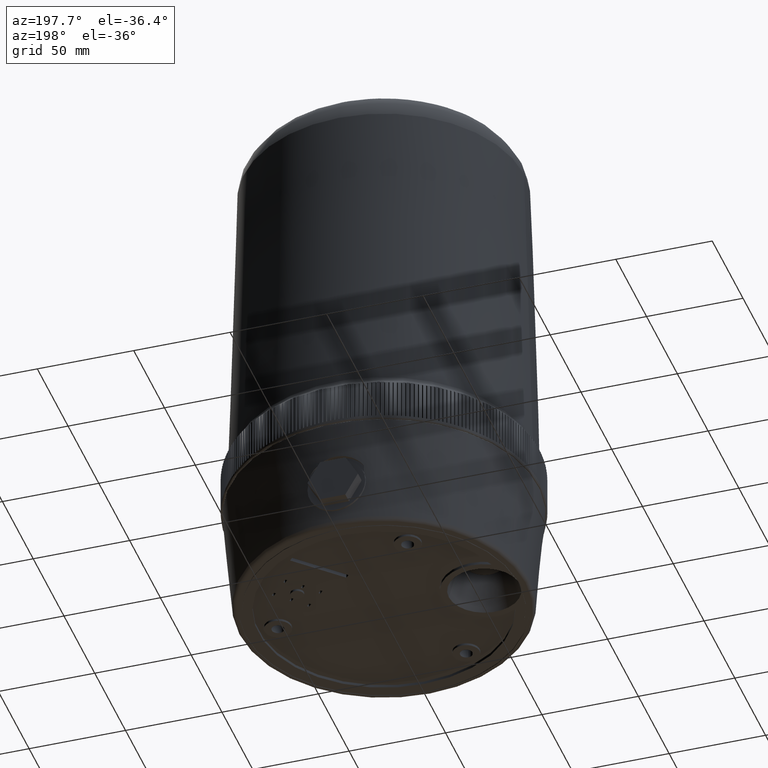
[diagram: clean part render]
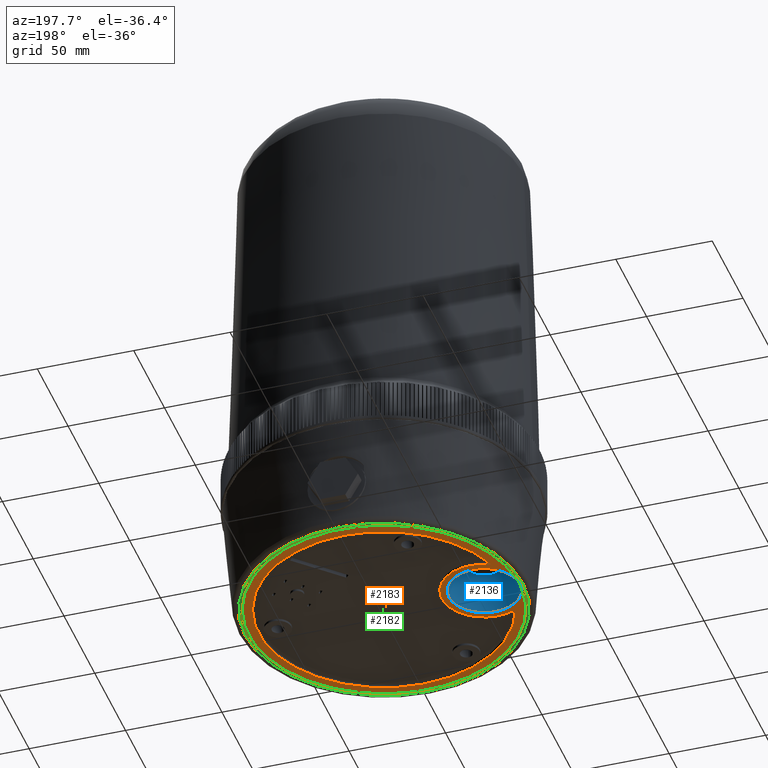
[diagram: same view with three faces highlighted in distinct colors, each labeled with its STEP entity id]
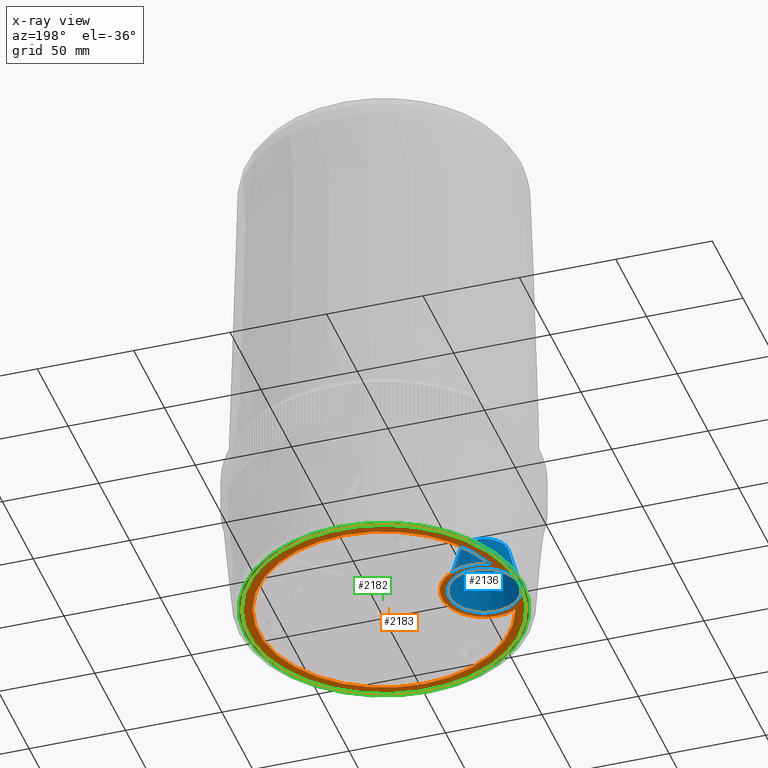
[diagram: x-ray of the same camera — body ghosted, the three highlighted faces saturated]
A machine part, auxiliary view with three faces highlighted in distinct colors.
The next image is the same camera in x-ray (body ghosted, the three faces saturated) — at least one of them is partly hidden behind the body in this view.
Their STEP definitions:

[orange] entity #2183 — the highlighted planar face has unit normal (0, 0, -1).
#1118=FACE_BOUND('',#5075,.T.);
#1119=FACE_BOUND('',#5076,.T.);
#2183=ADVANCED_FACE('',(#1118,#1119),#2979,.T.);
#2979=PLANE('',#20189);
#5075=EDGE_LOOP('',(#13274,#13275));
#5076=EDGE_LOOP('',(#13276,#13277));
#13274=ORIENTED_EDGE('',*,*,#17500,.T.);
#13275=ORIENTED_EDGE('',*,*,#17495,.T.);
#13276=ORIENTED_EDGE('',*,*,#17491,.F.);
#13277=ORIENTED_EDGE('',*,*,#17476,.T.);
#14944=VERTEX_POINT('',#31108);
#14945=VERTEX_POINT('',#31109);
#14957=VERTEX_POINT('',#31322);
#14958=VERTEX_POINT('',#31324);
#17476=EDGE_CURVE('',#14944,#14945,#18387,.T.);
#17491=EDGE_CURVE('',#14944,#14945,#18392,.T.);
#17495=EDGE_CURVE('',#14958,#14957,#18395,.T.);
#17500=EDGE_CURVE('',#14957,#14958,#18399,.T.);
#18387=CIRCLE('',#20123,65.);
#18392=CIRCLE('',#20131,22.);
#18395=CIRCLE('',#20135,18.3771907798607);
#18399=CIRCLE('',#20142,70.15);
#20123=AXIS2_PLACEMENT_3D('',#31107,#24870,#24871);
#20131=AXIS2_PLACEMENT_3D('',#31311,#24888,#24889);
#20135=AXIS2_PLACEMENT_3D('',#31323,#24896,#24897);
#20142=AXIS2_PLACEMENT_3D('',#31337,#24910,#24911);
#20189=AXIS2_PLACEMENT_3D('',#31526,#25088,#25089);
#24870=DIRECTION('',(0.,0.,1.));
#24871=DIRECTION('',(-1.,0.,0.));
#24888=DIRECTION('',(0.,0.,1.));
#24889=DIRECTION('',(0.,-1.,0.));
#24896=DIRECTION('',(0.,0.,1.));
#24897=DIRECTION('',(-1.,0.,0.));
#24910=DIRECTION('',(0.,0.,-1.));
#24911=DIRECTION('',(-1.,0.,0.));
#25088=DIRECTION('',(0.,0.,-1.));
#25089=DIRECTION('',(0.,-1.,0.));
#31107=CARTESIAN_POINT('',(7.37257477290143E-015,0.,-40.5));
#31108=CARTESIAN_POINT('',(-61.9711538461539,-19.6106116930688,-40.5));
#31109=CARTESIAN_POINT('',(-61.9711538461539,19.6106116930688,-40.5));
#31311=CARTESIAN_POINT('',(-51.9999999999998,1.094488E-014,-40.5));
#31322=CARTESIAN_POINT('',(-70.0702053753904,3.34496915540525,-40.5));
#31323=CARTESIAN_POINT('',(-52.,3.430906E-013,-40.5));
#31324=CARTESIAN_POINT('',(-70.0702053753904,-3.34496915540432,-40.5));
#31337=CARTESIAN_POINT('',(7.37257477290143E-015,0.,-40.5));
#31526=CARTESIAN_POINT('',(-66.3425463491583,0.,-40.5));

[blue] entity #2136 — the highlighted conical surface has half-angle 15 deg.
#785=B_SPLINE_CURVE_WITH_KNOTS('',3,(#31318,#31319,#31320,#31321),.UNSPECIFIED.,
 .F.,.F.,(4,4),(0.,1.),.UNSPECIFIED.);
#786=B_SPLINE_CURVE_WITH_KNOTS('',3,(#31325,#31326,#31327,#31328),.UNSPECIFIED.,
 .F.,.F.,(4,4),(0.,1.),.UNSPECIFIED.);
#1022=CONICAL_SURFACE('',#20136,15.1885953899304,15.);
#1102=FACE_BOUND('',#5020,.T.);
#1103=FACE_BOUND('',#5021,.T.);
#2136=ADVANCED_FACE('',(#1102,#1103),#1022,.F.);
#5020=EDGE_LOOP('',(#13105));
#5021=EDGE_LOOP('',(#13106,#13107,#13108,#13109));
#13105=ORIENTED_EDGE('',*,*,#17492,.F.);
#13106=ORIENTED_EDGE('',*,*,#17493,.T.);
#13107=ORIENTED_EDGE('',*,*,#17494,.T.);
#13108=ORIENTED_EDGE('',*,*,#17495,.F.);
#13109=ORIENTED_EDGE('',*,*,#17496,.T.);
#14954=VERTEX_POINT('',#31314);
#14955=VERTEX_POINT('',#31316);
#14956=VERTEX_POINT('',#31317);
#14957=VERTEX_POINT('',#31322);
#14958=VERTEX_POINT('',#31324);
#17492=EDGE_CURVE('',#14954,#14954,#18393,.T.);
#17493=EDGE_CURVE('',#14955,#14956,#18394,.T.);
#17494=EDGE_CURVE('',#14956,#14957,#785,.T.);
#17495=EDGE_CURVE('',#14958,#14957,#18395,.T.);
#17496=EDGE_CURVE('',#14958,#14955,#786,.T.);
#18393=CIRCLE('',#20133,12.2978982574652);
#18394=CIRCLE('',#20134,18.3102034817529);
#18395=CIRCLE('',#20135,18.3771907798607);
#20133=AXIS2_PLACEMENT_3D('',#31313,#24892,#24893);
#20134=AXIS2_PLACEMENT_3D('',#31315,#24894,#24895);
#20135=AXIS2_PLACEMENT_3D('',#31323,#24896,#24897);
#20136=AXIS2_PLACEMENT_3D('',#31329,#24898,#24899);
#24892=DIRECTION('',(0.,0.,-1.));
#24893=DIRECTION('',(1.,0.,0.));
#24894=DIRECTION('',(0.,0.,-1.));
#24895=DIRECTION('',(-1.,0.,0.));
#24896=DIRECTION('',(0.,0.,1.));
#24897=DIRECTION('',(-1.,0.,0.));
#24898=DIRECTION('',(0.,0.,-1.));
#24899=DIRECTION('',(1.,0.,1.22535638165908E-016));
#31313=CARTESIAN_POINT('',(-52.,3.41866E-013,-17.8117714323462));
#31314=CARTESIAN_POINT('',(-39.7021017425348,3.41866E-013,-17.8117714323462));
#31315=CARTESIAN_POINT('',(-52.,3.430906E-013,-40.25));
#31316=CARTESIAN_POINT('',(-70.0938360428539,-2.80653679781976,-40.25));
#31317=CARTESIAN_POINT('',(-70.0938360428539,2.80653679782069,-40.25));
#31318=CARTESIAN_POINT('',(-70.0938360428539,2.80653679782069,-40.25));
#31319=CARTESIAN_POINT('',(-70.0865387852303,2.98878731376906,-40.3273423563635));
#31320=CARTESIAN_POINT('',(-70.0786288248139,3.16851526191565,-40.4110467664398));
#31321=CARTESIAN_POINT('',(-70.0702053753904,3.34496915540525,-40.5));
#31322=CARTESIAN_POINT('',(-70.0702053753904,3.34496915540525,-40.5));
#31323=CARTESIAN_POINT('',(-52.,3.430906E-013,-40.5));
#31324=CARTESIAN_POINT('',(-70.0702053753904,-3.34496915540432,-40.5));
#31325=CARTESIAN_POINT('',(-70.0702053753904,-3.34496915540432,-40.5));
#31326=CARTESIAN_POINT('',(-70.0786287843068,-3.1685161104558,-40.411047194203));
#31327=CARTESIAN_POINT('',(-70.086538721368,-2.98878890874252,-40.3273430332289));
#31328=CARTESIAN_POINT('',(-70.0938360428539,-2.80653679781976,-40.25));
#31329=CARTESIAN_POINT('',(-52.,3.430906E-013,-28.6));

[green] entity #2182 — the highlighted planar face has unit normal (0, 0, 1).
#1116=FACE_BOUND('',#5073,.T.);
#1117=FACE_BOUND('',#5074,.T.);
#2182=ADVANCED_FACE('',(#1116,#1117),#2978,.F.);
#2978=PLANE('',#20188);
#5073=EDGE_LOOP('',(#13271));
#5074=EDGE_LOOP('',(#13272,#13273));
#13271=ORIENTED_EDGE('',*,*,#17497,.F.);
#13272=ORIENTED_EDGE('',*,*,#17493,.F.);
#13273=ORIENTED_EDGE('',*,*,#17499,.T.);
#14955=VERTEX_POINT('',#31316);
#14956=VERTEX_POINT('',#31317);
#14959=VERTEX_POINT('',#31332);
#17493=EDGE_CURVE('',#14955,#14956,#18394,.T.);
#17497=EDGE_CURVE('',#14959,#14959,#18396,.T.);
#17499=EDGE_CURVE('',#14955,#14956,#18398,.T.);
#18394=CIRCLE('',#20134,18.3102034817529);
#18396=CIRCLE('',#20138,71.85);
#18398=CIRCLE('',#20141,70.15);
#20134=AXIS2_PLACEMENT_3D('',#31315,#24894,#24895);
#20138=AXIS2_PLACEMENT_3D('',#31331,#24902,#24903);
#20141=AXIS2_PLACEMENT_3D('',#31336,#24908,#24909);
#20188=AXIS2_PLACEMENT_3D('',#31525,#25086,#25087);
#24894=DIRECTION('',(0.,0.,-1.));
#24895=DIRECTION('',(-1.,0.,0.));
#24902=DIRECTION('',(0.,0.,1.));
#24903=DIRECTION('',(-1.,0.,0.));
#24908=DIRECTION('',(0.,0.,1.));
#24909=DIRECTION('',(-1.,0.,0.));
#25086=DIRECTION('',(0.,0.,1.));
#25087=DIRECTION('',(0.,1.,0.));
#31315=CARTESIAN_POINT('',(-52.,3.430906E-013,-40.25));
#31316=CARTESIAN_POINT('',(-70.0938360428539,-2.80653679781976,-40.25));
#31317=CARTESIAN_POINT('',(-70.0938360428539,2.80653679782069,-40.25));
#31331=CARTESIAN_POINT('',(7.37257477290143E-015,0.,-40.25));
#31332=CARTESIAN_POINT('',(-71.85,0.,-40.25));
#31336=CARTESIAN_POINT('',(7.37257477290143E-015,0.,-40.25));
#31525=CARTESIAN_POINT('',(-71.,4.684507E-013,-40.25));